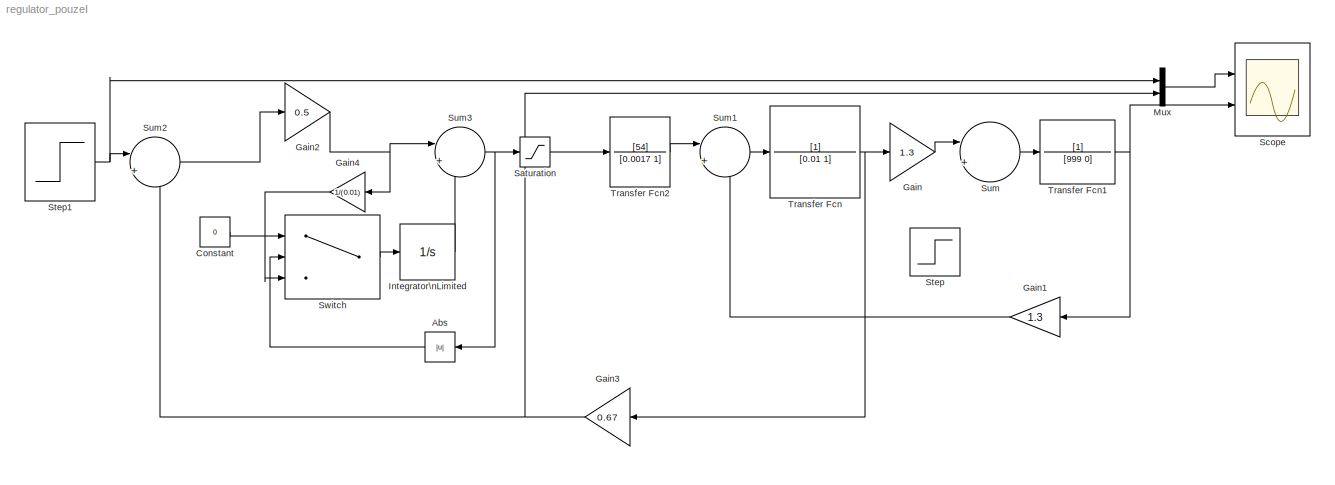
MODEL regulator_pouzeI
KIND model
BLOCK [Abs] Abs
  SID = 21
  SaturateOnIntegerOverflow = off
BLOCK [Constant] Constant
  SID = 19
  Value = 0
BLOCK [Gain] Gain
  Gain = 1.3
  OutDataTypeStr = Inherit: Inherit via internal rule
  ParamDataTypeStr = Inherit: Inherit via internal rule
  SID = 2
  SaturateOnIntegerOverflow = off
BLOCK [Gain] Gain1
  Gain = 1.3
  OutDataTypeStr = Inherit: Inherit via internal rule
  ParamDataTypeStr = Inherit: Inherit via internal rule
  SID = 9
  SaturateOnIntegerOverflow = off
BLOCK [Gain] Gain2
  Gain = 0.5
  OutDataTypeStr = Inherit: Inherit via internal rule
  ParamDataTypeStr = Inherit: Inherit via internal rule
  SID = 14
  SaturateOnIntegerOverflow = off
BLOCK [Gain] Gain3
  Gain = 0.67
  OutDataTypeStr = Inherit: Inherit via internal rule
  ParamDataTypeStr = Inherit: Inherit via internal rule
  SID = 23
  SaturateOnIntegerOverflow = off
BLOCK [Gain] Gain4
  Gain = 1/(0.01)
  OutDataTypeStr = Inherit: Inherit via internal rule
  ParamDataTypeStr = Inherit: Inherit via internal rule
  SID = 27
  SaturateOnIntegerOverflow = off
BLOCK [Integrator] Integrator\nLimited
  LimitOutput = on
  LowerSaturationLimit = -8
  Ports = [1, 1]
  SID = 17
  UpperSaturationLimit = 8
BLOCK [Mux] Mux
  DisplayOption = bar
  Inputs = 2
  Ports = [2, 1]
  SID = 26
BLOCK [Saturate] Saturation
  InputPortMap = u0
  LowerLimit = -8
  Ports = [1, 1]
  SID = 22
  UpperLimit = 8
BLOCK [Scope] Scope
  DataFormat = StructureWithTime
  Floating = off
  LimitDataPoints = off
  NumInputPorts = 2
  Ports = [2]
  SID = 25
  SampleTime = 0
  YMax = 5~5
  YMin = -5~-5
  ZoomMode = yonly
BLOCK [Step] Step
  After = 5
  SID = 5
  SampleTime = 0
  Time = 5
BLOCK [Step] Step1
  After = 5
  SID = 24
  Time = 2
BLOCK [Sum] Sum
  IconShape = round
  InputSameDT = off
  Inputs = |+-
  OutDataTypeStr = Inherit: Inherit via internal rule
  Ports = [2, 1]
  SID = 3
  SaturateOnIntegerOverflow = off
BLOCK [Sum] Sum1
  IconShape = round
  InputSameDT = off
  Inputs = |+-
  OutDataTypeStr = Inherit: Inherit via internal rule
  Ports = [2, 1]
  SID = 10
  SaturateOnIntegerOverflow = off
BLOCK [Sum] Sum2
  IconShape = round
  InputSameDT = off
  Inputs = |+-
  OutDataTypeStr = Inherit: Inherit via internal rule
  Ports = [2, 1]
  SID = 13
  SaturateOnIntegerOverflow = off
BLOCK [Sum] Sum3
  IconShape = round
  InputSameDT = off
  Inputs = |++
  OutDataTypeStr = Inherit: Inherit via internal rule
  Ports = [2, 1]
  SID = 16
  SaturateOnIntegerOverflow = off
BLOCK [Switch] Switch
  InputSameDT = off
  SID = 18
  SaturateOnIntegerOverflow = off
  Threshold = 8
BLOCK [TransferFcn] Transfer Fcn
  Denominator = [0.01 1]
  SID = 1
BLOCK [TransferFcn] Transfer Fcn1
  Denominator = [999 0]
  SID = 8
BLOCK [TransferFcn] Transfer Fcn2
  Denominator = [0.0017 1]
  Numerator = [54]
  SID = 11
LINE Abs:1 -> Switch:2
LINE Constant:1 -> Switch:1
LINE Gain1:1 -> Sum1:2
NET Gain2:1 -> Gain4:1, Sum3:1
NET Gain3:1 -> Mux:2, Sum2:2
LINE Gain4:1 -> Switch:3
LINE Gain:1 -> Sum:1
LINE Integrator\nLimited:1 -> Sum3:2
LINE Mux:1 -> Scope:1
LINE Saturation:1 -> Transfer Fcn2:1
NET Step1:1 -> Mux:1, Sum2:1
LINE Sum1:1 -> Transfer Fcn:1
LINE Sum2:1 -> Gain2:1
NET Sum3:1 -> Abs:1, Saturation:1
LINE Sum:1 -> Transfer Fcn1:1
LINE Switch:1 -> Integrator\nLimited:1
NET Transfer Fcn1:1 -> Gain1:1, Scope:2
LINE Transfer Fcn2:1 -> Sum1:1
NET Transfer Fcn:1 -> Gain3:1, Gain:1
note: NET lines group one-source signal fan-out (src -> all destinations, sorted); 1:1 wires keep LINE
